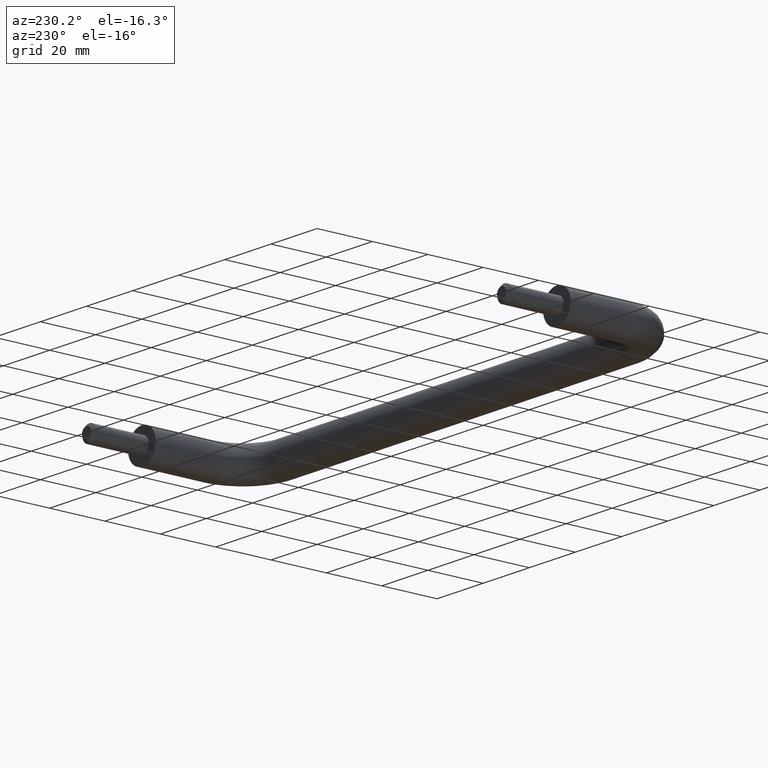
[diagram: clean part render]
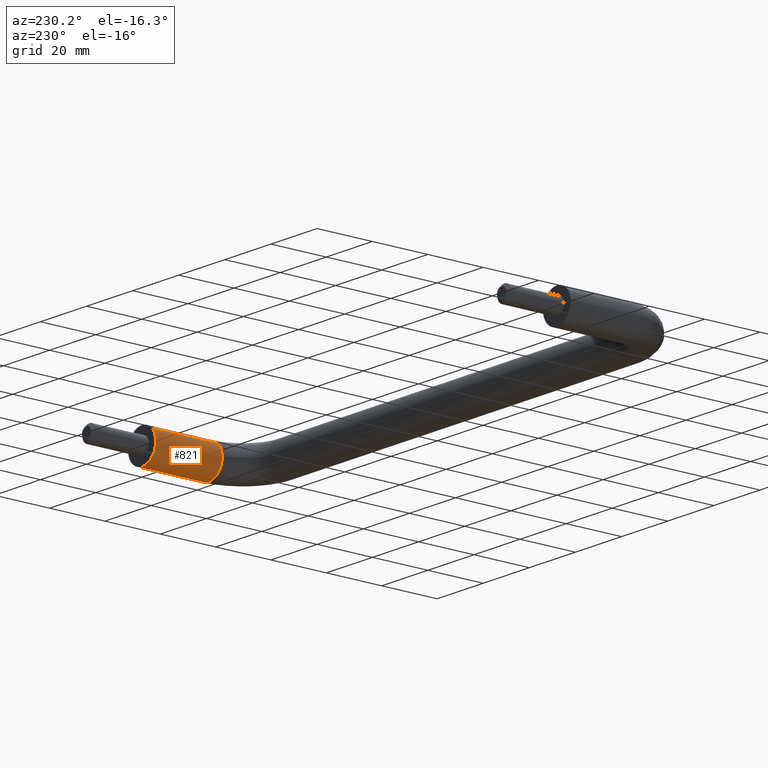
[diagram: same view with one face highlighted and labeled with its STEP entity id]
A machine part, auxiliary view. The second image highlights one B-rep face of the part: STEP entity #821.
In plain terms, the highlighted face is a freeform B-spline surface patch.
Its self-contained STEP definition (entity closure, byte-faithful):
#708=CARTESIAN_POINT('',(183.953817432959680,-24.600000001187635,-4.513017583261183));
#709=CARTESIAN_POINT('',(179.691933753874250,-24.600000001187624,-8.246818676816256));
#710=CARTESIAN_POINT('',(175.720497305074900,-24.600000001187642,-4.205455585799104));
#711=CARTESIAN_POINT('',(171.515041719275760,-24.600000001187627,0.074047109125984));
#712=CARTESIAN_POINT('',(175.794544414200910,-24.600000001187642,4.279502694925088));
#713=CARTESIAN_POINT('',(183.953817432959680,0.615000000029713,-4.513017583261183));
#714=CARTESIAN_POINT('',(179.691933753874250,0.615000000029713,-8.246818676816256));
#715=CARTESIAN_POINT('',(175.720497305074900,0.615000000029713,-4.205455585799104));
#716=CARTESIAN_POINT('',(171.515041719275760,0.615000000029714,0.074047109125984));
#717=CARTESIAN_POINT('',(175.794544414200910,0.615000000029714,4.279502694925088));
#725=(BOUNDED_SURFACE()B_SPLINE_SURFACE(2,1,((#708,#713),(#709,#714),(#710,#715),(#711,#716),(#712,#717)),.UNSPECIFIED.,.F.,.F.,.U.)B_SPLINE_SURFACE_WITH_KNOTS((3,2,3),(2,2),(0.0,9.543480477076107,19.484605974030391),(0.0,25.215000001217351),.UNSPECIFIED.)GEOMETRIC_REPRESENTATION_ITEM()RATIONAL_B_SPLINE_SURFACE(((0.977505800795127,0.977505800795127),(0.718822509939086,0.718822509939086),(1.0,1.0),(0.707106781186548,0.707106781186548),(1.0,1.0)))REPRESENTATION_ITEM('')SURFACE());
#726=CARTESIAN_POINT('',(183.953816404243100,-24.000000000000028,-4.513018484510798));
#727=VERTEX_POINT('',#726);
#728=CARTESIAN_POINT('',(179.924603759232810,-24.000000001158671,-5.999526265204459));
#729=VERTEX_POINT('',#728);
#730=CARTESIAN_POINT('',(183.953816404243180,-24.000000000000007,-4.513018484510921));
#731=CARTESIAN_POINT('',(182.256525893149610,-24.0,-6.0));
#732=CARTESIAN_POINT('',(180.0,-24.0,-6.0));
#733=CARTESIAN_POINT('',(179.962300390581420,-23.999999999999996,-6.0));
#734=CARTESIAN_POINT('',(179.924603759232890,-24.000000001158668,-5.999526265204459));
#742=(BOUNDED_CURVE()B_SPLINE_CURVE(2,(#730,#731,#732,#733,#734),.UNSPECIFIED.,.F.,.U.)B_SPLINE_CURVE_WITH_KNOTS((3,2,3),(0.134954754507824,0.250000000000000,0.252215704164279),.UNSPECIFIED.)CURVE()GEOMETRIC_REPRESENTATION_ITEM()RATIONAL_B_SPLINE_CURVE((0.854482186737985,0.865216110954452,1.0,0.997404141101543,0.994854295446056))REPRESENTATION_ITEM(''));
#743=EDGE_CURVE('',#727,#729,#742,.T.);
#744=ORIENTED_EDGE('',*,*,#743,.T.);
#745=CARTESIAN_POINT('',(174.0,-24.0,0.0));
#746=VERTEX_POINT('',#745);
#747=CARTESIAN_POINT('',(179.924603759232840,-24.000000001158668,-5.999526265204459));
#748=CARTESIAN_POINT('',(173.999999999999940,-23.999999999999996,-5.925071576546007));
#749=CARTESIAN_POINT('',(174.0,-24.0,0.0));
#757=(BOUNDED_CURVE()B_SPLINE_CURVE(2,(#747,#748,#749),.UNSPECIFIED.,.F.,.U.)B_SPLINE_CURVE_WITH_KNOTS((3,3),(0.252215704164280,0.500000000000000),.UNSPECIFIED.)CURVE()GEOMETRIC_REPRESENTATION_ITEM()RATIONAL_B_SPLINE_CURVE((0.994854295446056,0.709702640085004,1.0))REPRESENTATION_ITEM(''));
#758=EDGE_CURVE('',#729,#746,#757,.T.);
#759=ORIENTED_EDGE('',*,*,#758,.T.);
#760=CARTESIAN_POINT('',(175.794545030520990,-23.999999999999989,4.279503300581002));
#761=VERTEX_POINT('',#760);
#762=CARTESIAN_POINT('',(174.0,-24.0,0.0));
#763=CARTESIAN_POINT('',(174.0,-24.000000000000004,2.516009826595700));
#764=CARTESIAN_POINT('',(175.794545030521020,-23.999999999999989,4.279503300581003));
#772=(BOUNDED_CURVE()B_SPLINE_CURVE(2,(#762,#763,#764),.UNSPECIFIED.,.F.,.U.)B_SPLINE_CURVE_WITH_KNOTS((3,3),(0.500000000000000,0.626316801052815),.UNSPECIFIED.)CURVE()GEOMETRIC_REPRESENTATION_ITEM()RATIONAL_B_SPLINE_CURVE((1.0,0.852010662197690,0.853569642324278))REPRESENTATION_ITEM(''));
#773=EDGE_CURVE('',#746,#761,#772,.T.);
#774=ORIENTED_EDGE('',*,*,#773,.T.);
#775=CARTESIAN_POINT('',(175.794545023095310,1.845746E-014,4.279503293283767));
#776=VERTEX_POINT('',#775);
#777=CARTESIAN_POINT('',(175.794545030520990,-23.999999999999989,4.279503300581002));
#778=CARTESIAN_POINT('',(175.794545023095310,1.845746E-014,4.279503293283767));
#779=QUASI_UNIFORM_CURVE('',1,(#777,#778),.UNSPECIFIED.,.F.,.U.);
#780=EDGE_CURVE('',#761,#776,#779,.T.);
#781=ORIENTED_EDGE('',*,*,#780,.T.);
#782=CARTESIAN_POINT('',(174.0,2.081668E-014,0.0));
#783=VERTEX_POINT('',#782);
#784=CARTESIAN_POINT('',(174.0,2.081668E-014,0.0));
#785=CARTESIAN_POINT('',(174.000000000000060,2.081668E-014,2.516009814353894));
#786=CARTESIAN_POINT('',(175.794545023095310,1.845746E-014,4.279503293283766));
#794=(BOUNDED_CURVE()B_SPLINE_CURVE(2,(#784,#785,#786),.UNSPECIFIED.,.F.,.U.)B_SPLINE_CURVE_WITH_KNOTS((3,3),(0.500000000000000,0.626316800529167),.UNSPECIFIED.)CURVE()GEOMETRIC_REPRESENTATION_ITEM()RATIONAL_B_SPLINE_CURVE((1.0,0.852010662811182,0.853569642311352))REPRESENTATION_ITEM(''));
#795=EDGE_CURVE('',#783,#776,#794,.T.);
#796=ORIENTED_EDGE('',*,*,#795,.F.);
#797=CARTESIAN_POINT('',(183.953816416641500,2.091423E-014,-4.513018473648650));
#798=VERTEX_POINT('',#797);
#799=CARTESIAN_POINT('',(183.953816416641700,2.081668E-014,-4.513018473648772));
#800=CARTESIAN_POINT('',(182.256525902557140,2.081668E-014,-6.0));
#801=CARTESIAN_POINT('',(180.0,2.081668E-014,-6.0));
#802=CARTESIAN_POINT('',(174.000000000000030,2.081668E-014,-6.0));
#803=CARTESIAN_POINT('',(174.0,2.081668E-014,0.0));
#811=(BOUNDED_CURVE()B_SPLINE_CURVE(2,(#799,#800,#801,#802,#803),.UNSPECIFIED.,.F.,.U.)B_SPLINE_CURVE_WITH_KNOTS((3,2,3),(0.134954754092844,0.250000000000000,0.500000000000000),.UNSPECIFIED.)CURVE()GEOMETRIC_REPRESENTATION_ITEM()RATIONAL_B_SPLINE_CURVE((0.854482186660549,0.865216110468272,1.0,0.707106781186548,1.0))REPRESENTATION_ITEM(''));
#812=EDGE_CURVE('',#798,#783,#811,.T.);
#813=ORIENTED_EDGE('',*,*,#812,.F.);
#814=CARTESIAN_POINT('',(183.953816404243100,-24.000000000000028,-4.513018484510798));
#815=CARTESIAN_POINT('',(183.953816416641500,2.091423E-014,-4.513018473648650));
#816=QUASI_UNIFORM_CURVE('',1,(#814,#815),.UNSPECIFIED.,.F.,.U.);
#817=EDGE_CURVE('',#727,#798,#816,.T.);
#818=ORIENTED_EDGE('',*,*,#817,.F.);
#819=EDGE_LOOP('',(#744,#759,#774,#781,#796,#813,#818));
#820=FACE_OUTER_BOUND('',#819,.T.);
#821=ADVANCED_FACE('',(#820),#725,.T.);